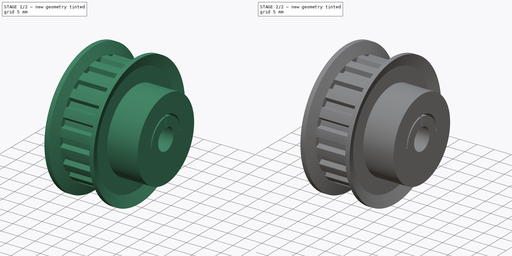
[diagram: build sequence overview — one tinted view per stage of 2, left to right]
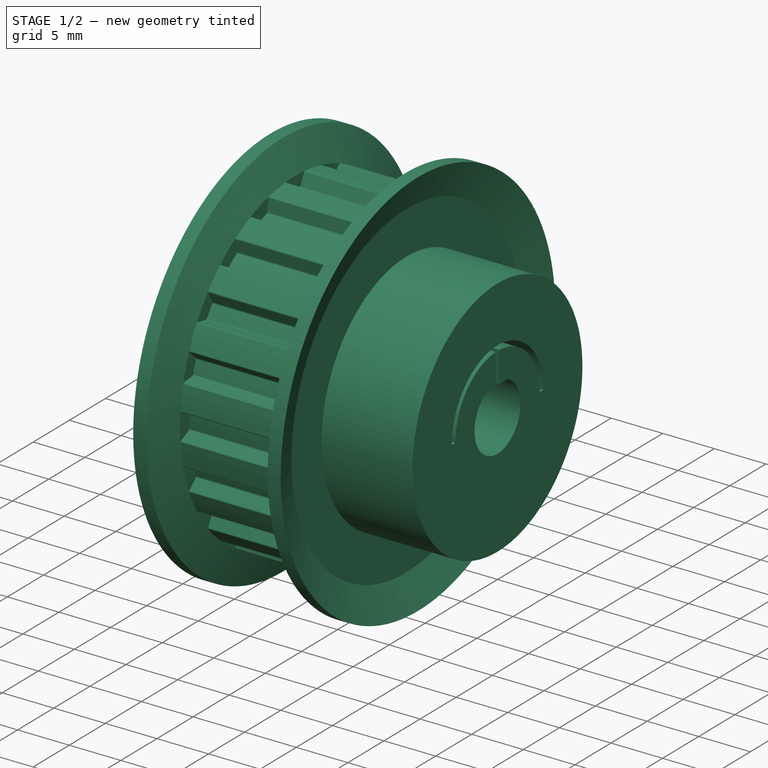
[diagram: stage 1 of 2 — iso view after this stage's code; geometry added in this stage tinted green]
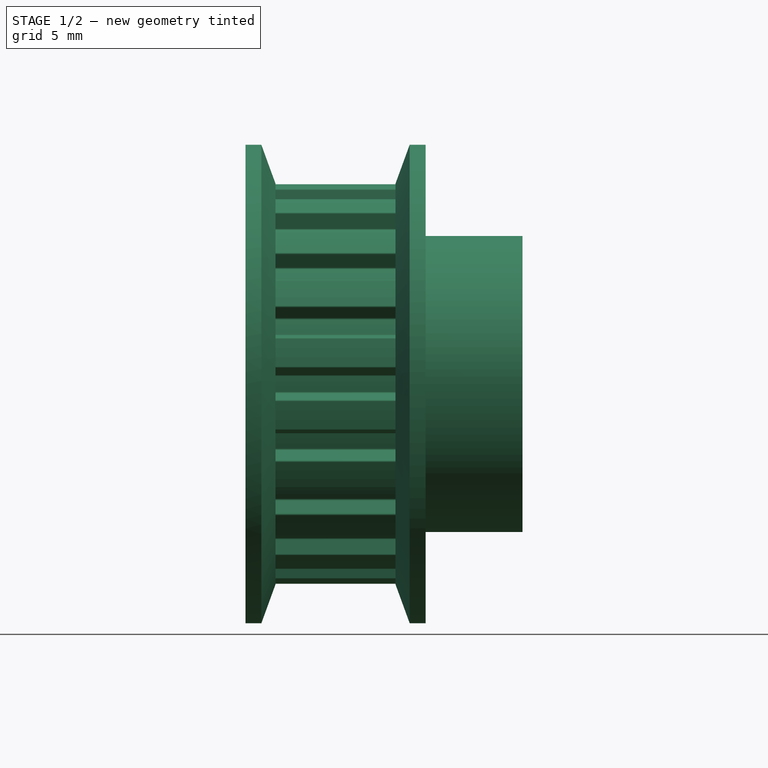
[diagram: stage 1 of 2 — front view after this stage's code; geometry added in this stage tinted green]
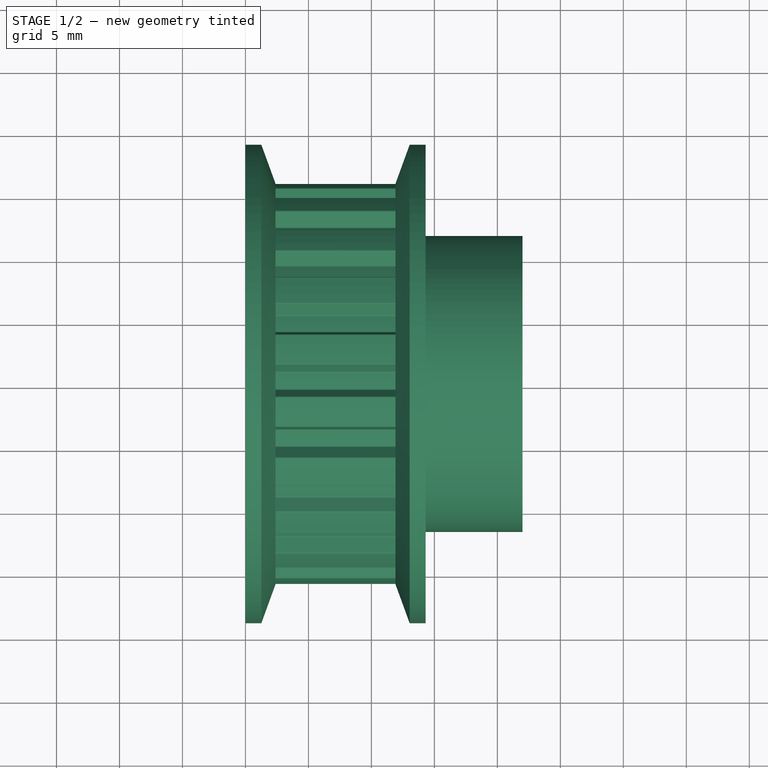
[diagram: stage 1 of 2 — top view after this stage's code; geometry added in this stage tinted green]
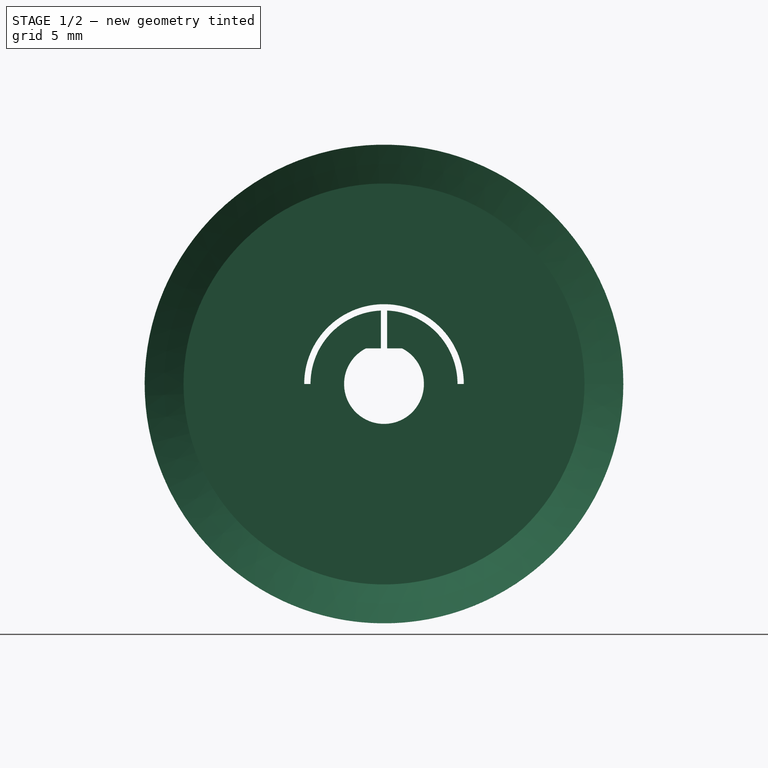
[diagram: stage 1 of 2 — right view after this stage's code; geometry added in this stage tinted green]
FCSTD DOCUMENT  (FreeCAD 0.17R12316 (Git))
Label: 18032000NEMA23
License: All rights reserved
LicenseURL: http://en.wikipedia.org/wiki/All_rights_reserved
objects: PartDesign::FeatureBase×2, Sketcher::SketchObject×2, PartDesign::Pocket×2, Part::Feature×1, PartDesign::Body×1
note: 10 computed .brp shape members not serialized (recipe doc carries the construction recipe); baked Part::Feature solids carry a one-line shape summary decoded from their .brp

FEATURE [Part::Feature] Part__Feature  label="_18032000"
  Placement = pos=(0,0,0) rot=(0,-1,0;1.5708rad)
  shape: bbox 38 x 38 x 22 mm, 210 faces (baked)
FEATURE [PartDesign::FeatureBase] BaseFeature
  BaseFeature = -> Part__Feature
FEATURE [Sketcher::SketchObject] Sketch
  MapMode = 5
  Placement = pos=(22,0,0) rot=(0.57735,0.57735,0.57735;2.0944rad)
  Support = -> [BaseFeature]
  sketch-geometry (11):
    g0: ArcOfCircle CenterX=0 CenterY=0 CenterZ=0 NormalX=0 NormalY=0 NormalZ=1 AngleXU=0 Radius=3.17 StartAngle=2.03819 EndAngle=7.38659
    g1: LineSegment StartX=-1.42829 StartY=2.83 StartZ=0 EndX=-0.25 EndY=2.83 EndZ=0
    g2: LineSegment StartX=1.42829 StartY=2.83 StartZ=0 EndX=0.25 EndY=2.83 EndZ=0
    g3: LineSegment StartX=-0.25 StartY=2.83 StartZ=0 EndX=-0.25 EndY=5.83 EndZ=0
    g4: LineSegment StartX=0.25 StartY=2.83 StartZ=0 EndX=0.25 EndY=5.83 EndZ=0
    g5: ArcOfCircle CenterX=0 CenterY=0 CenterZ=0 NormalX=0 NormalY=0 NormalZ=1 AngleXU=0 Radius=5.83536 StartAngle=1.61365 EndAngle=3.14159
    g6: ArcOfCircle CenterX=0 CenterY=0 CenterZ=0 NormalX=0 NormalY=0 NormalZ=1 AngleXU=0 Radius=5.83536 StartAngle=0 EndAngle=1.52794
    g7: ArcOfCircle CenterX=0 CenterY=0 CenterZ=0 NormalX=0 NormalY=0 NormalZ=1 AngleXU=0 Radius=6.33536 StartAngle=0 EndAngle=3.14159
    g8: LineSegment StartX=-6.33536 StartY=0 StartZ=0 EndX=-5.83536 EndY=0 EndZ=0
    g9: LineSegment StartX=5.83536 StartY=0 StartZ=0 EndX=6.33536 EndY=0 EndZ=0
    g10: GeomPoint X=0 Y=-3.17 Z=0
  constraints (31):
    c: Coincident(g0,g-1)
    c: Coincident(g1,g0)
    c: Horizontal(g1)
    c: Coincident(g2,g0)
    c: Horizontal(g2)
    c: Coincident(g3,g1)
    c: Vertical(g3)
    c: Coincident(g4,g2)
    c: Vertical(g4)
    c: Coincident(g5,g-1)
    c: Coincident(g5,g3)
    c: Coincident(g6,g-1)
    c: Coincident(g6,g4)
    c: Coincident(g7,g-1)
    c: Coincident(g8,g7)
    c: Coincident(g8,g5)
    c: Coincident(g9,g6)
    c: Coincident(g9,g7)
    c: Symmetric(g2,g1,g-2)
    c: Equal(g4,g3)
    c: Perpendicular(g6,g9)
    c: Perpendicular(g5,g8)
    c: Radius(g0) = 3.17
    c: PointOnObject(g10,g0)
    c: PointOnObject(g10,g-2)
    c: DistanceY(g10,g0) = 6
    c: Distance(g4) = 3
    c: Distance(g4,g3) = 0.5
    c: PointOnObject(g6,g-1)
    c: PointOnObject(g5,g-1)
    c: DistanceX(g9,g9) = 0.5
FEATURE [PartDesign::Pocket] Pocket
  BaseFeature = -> BaseFeature
  Length = 5
  Profile = -> Sketch
  Type = 1
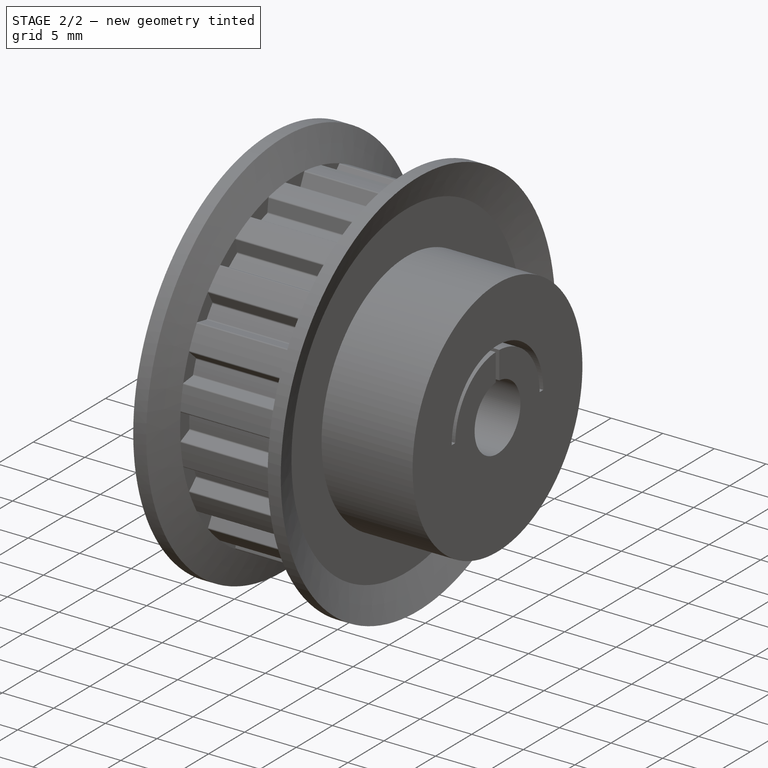
[diagram: stage 2 of 2 — iso view after this stage's code; geometry added in this stage tinted green]
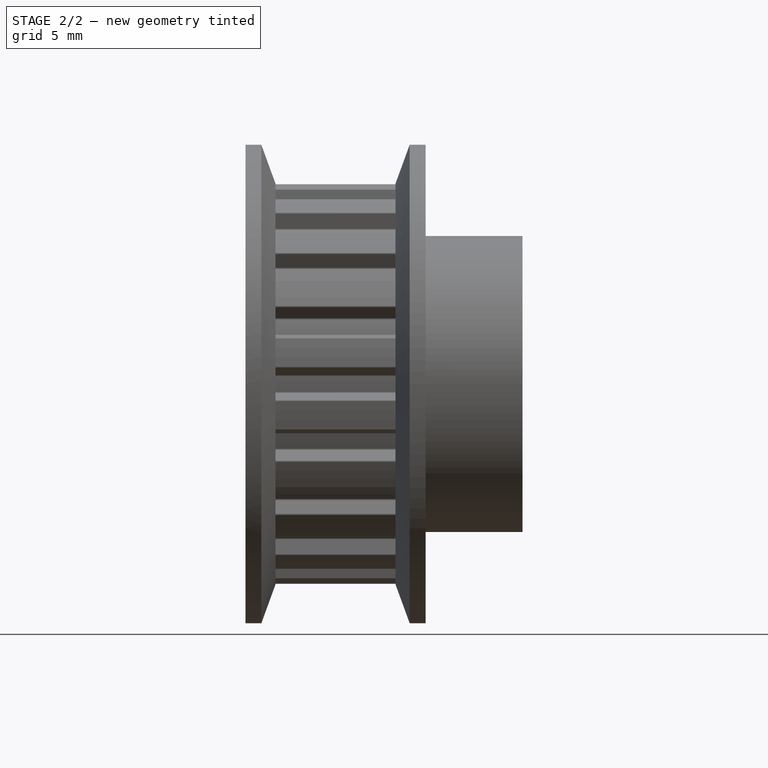
[diagram: stage 2 of 2 — front view after this stage's code; geometry added in this stage tinted green]
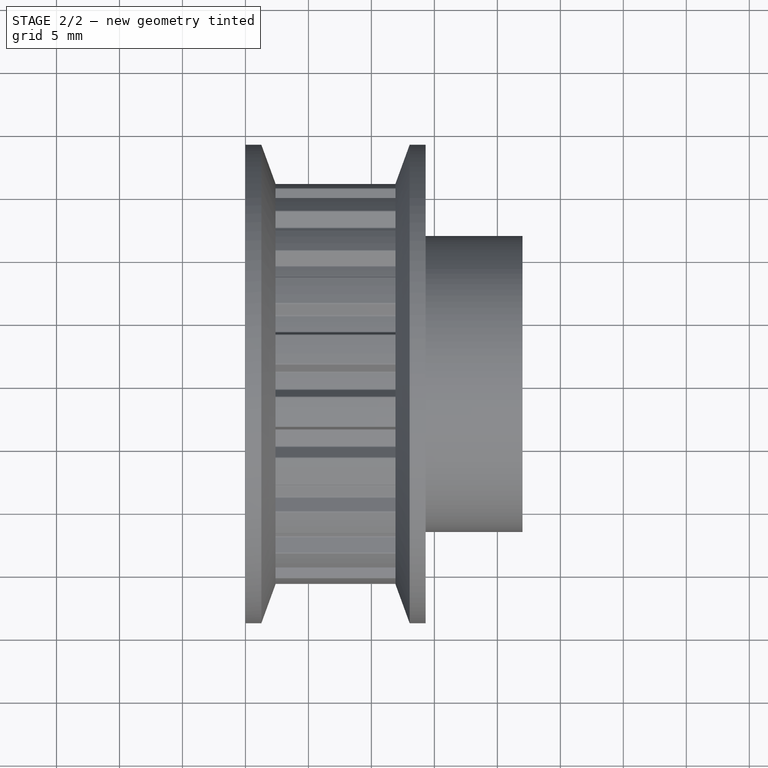
[diagram: stage 2 of 2 — top view after this stage's code; geometry added in this stage tinted green]
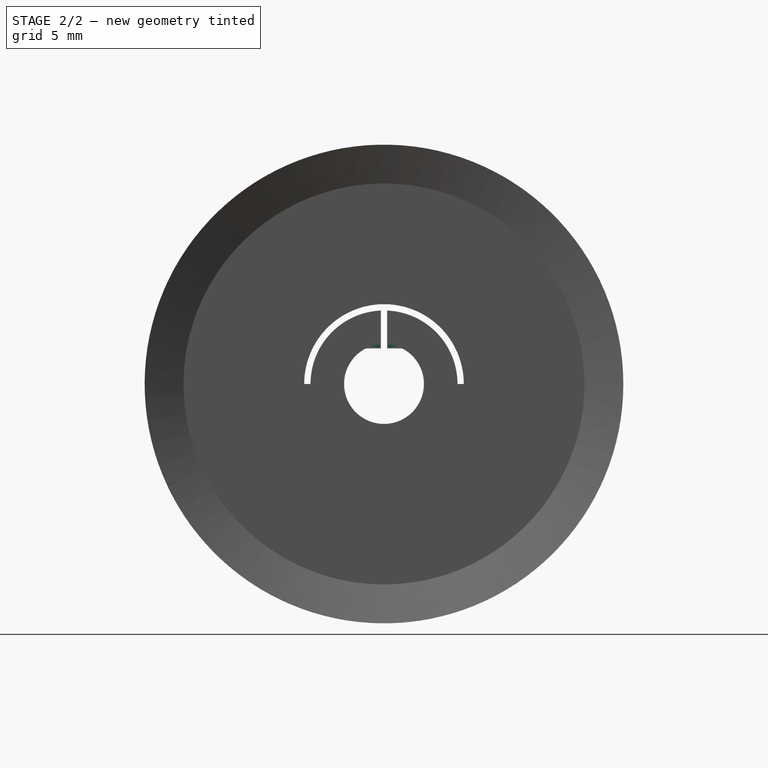
[diagram: stage 2 of 2 — right view after this stage's code; geometry added in this stage tinted green]
FEATURE [Sketcher::SketchObject] Sketch001
  ExternalGeometry = -> [Pocket]
  MapMode = 5
  Placement = pos=(22,0,0) rot=(0.57735,0.57735,0.57735;2.0944rad)
  Support = -> [Pocket]
  sketch-geometry (1):
    g0: Circle CenterX=0 CenterY=0 CenterZ=0 NormalX=0 NormalY=0 NormalZ=1 AngleXU=0 Radius=3.17
  constraints (2):
    c: Coincident(g0,g-1)
    c: Equal(g0,g-3)
FEATURE [PartDesign::Pocket] Pocket001
  BaseFeature = -> Pocket
  Length = 6
  Profile = -> Sketch001
  Type = 0
FEATURE [PartDesign::Body] Body
  BaseFeature = -> Part__Feature
  Group = -> [BaseFeature,Sketch,Pocket,Sketch001,Pocket001]
  Origin = -> Origin
  Placement = pos=(0,0,0) rot=(0,-1,0;1.5708rad)
  Tip = -> Pocket001
FEATURE [PartDesign::FeatureBase] BaseFeature001
  BaseFeature = -> Part__Feature
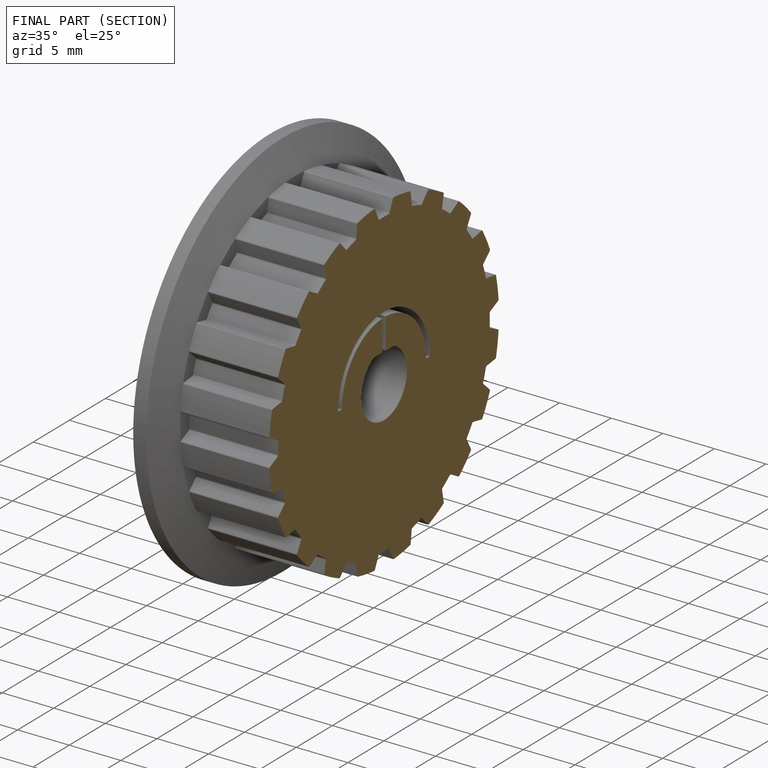
[diagram: finished part — half-section view (interior)]
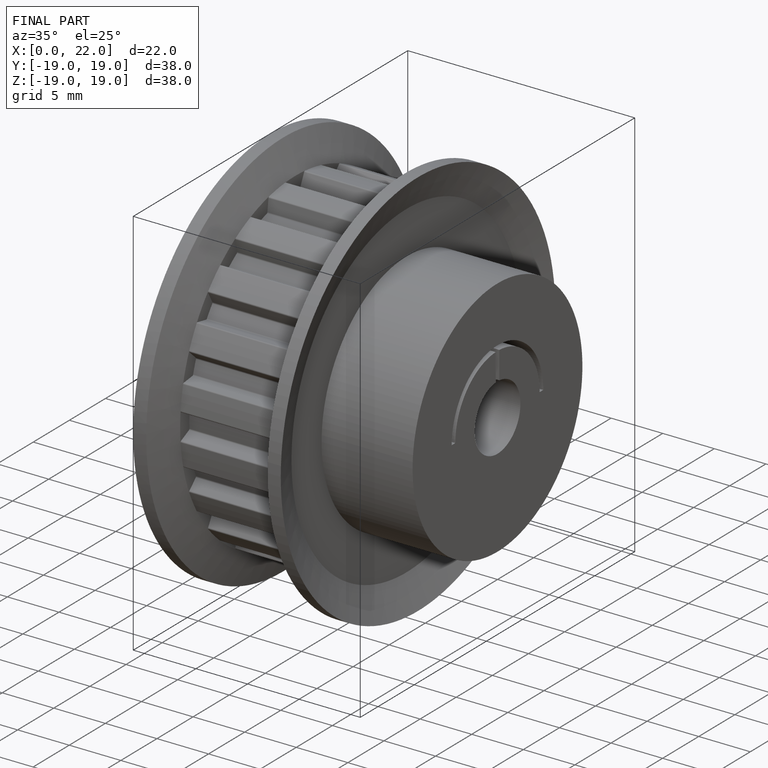
[diagram: finished part — iso view with bounding-box wireframe]
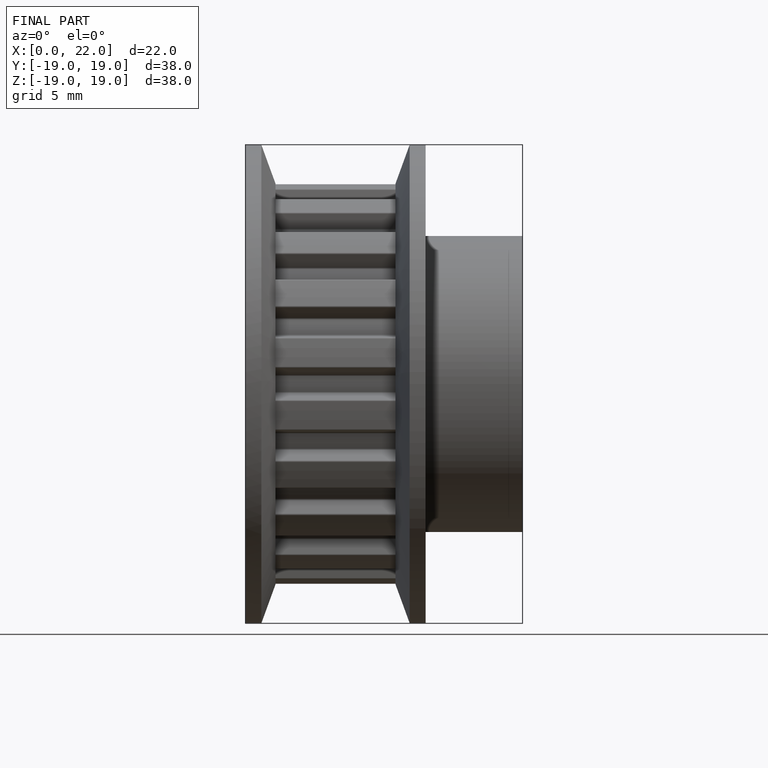
[diagram: finished part — front view with bounding-box wireframe]
